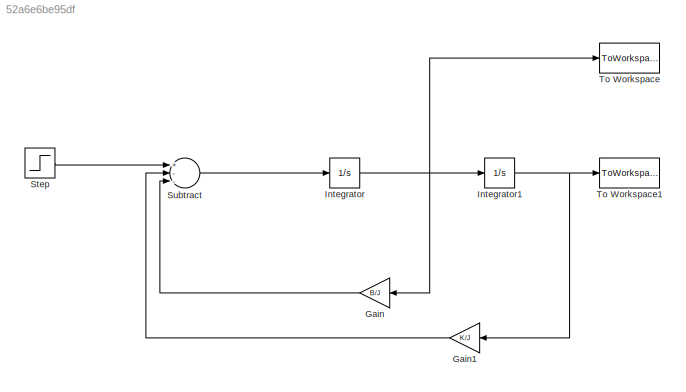
MODEL slx_52a6e6be95df
KIND model
CONFIG AbsTol = auto
CONFIG EnableMultiTasking = off
CONFIG FixedStep = auto
CONFIG MaxStep = auto
CONFIG MinStep = auto
CONFIG RelTol = 1e-3
CONFIG SampleTimeConstraint = Unconstrained
CONFIG Solver = VariableStepAuto
CONFIG SolverName = VariableStepAuto
CONFIG StartTime = 0.0
CONFIG StopTime = 10.0
BLOCK [Gain] Gain
  Gain = B/J
  OutDataTypeStr = Inherit: Inherit via internal rule
  ParamDataTypeStr = Inherit: Inherit via internal rule
  SaturateOnIntegerOverflow = off
BLOCK [Gain] Gain1
  Gain = K/J
  OutDataTypeStr = Inherit: Inherit via internal rule
  ParamDataTypeStr = Inherit: Inherit via internal rule
  SaturateOnIntegerOverflow = off
BLOCK [Integrator] Integrator
  Ports = [1, 1]
BLOCK [Integrator] Integrator1
  InitialCondition = .175
  Ports = [1, 1]
BLOCK [Step] Step
  SampleTime = 0
BLOCK [Sum] Subtract
  InputSameDT = off
  Inputs = +--
  OutDataTypeStr = Inherit: Inherit via internal rule
  Ports = [3, 1]
  SaturateOnIntegerOverflow = off
BLOCK [ToWorkspace] To Workspace
  FixptAsFi = on
  MaxDataPoints = inf
  Ports = [1]
  SampleTime = -1
  Save2DSignal = 3-D array (concatenate along third dimension)
  SaveFormat = Timeseries
  VariableName = theta_dot
BLOCK [ToWorkspace] To Workspace1
  FixptAsFi = on
  MaxDataPoints = inf
  Ports = [1]
  SampleTime = -1
  Save2DSignal = 3-D array (concatenate along third dimension)
  SaveFormat = Timeseries
  VariableName = theta
LINE Gain1:1 -> Subtract:2
LINE Gain:1 -> Subtract:3
NET Integrator1:1 -> Gain1:1, To Workspace1:1
NET Integrator:1 -> Gain:1, Integrator1:1, To Workspace:1
LINE Step:1 -> Subtract:1
LINE Subtract:1 -> Integrator:1
note: NET lines group one-source signal fan-out (src -> all destinations, sorted); 1:1 wires keep LINE
